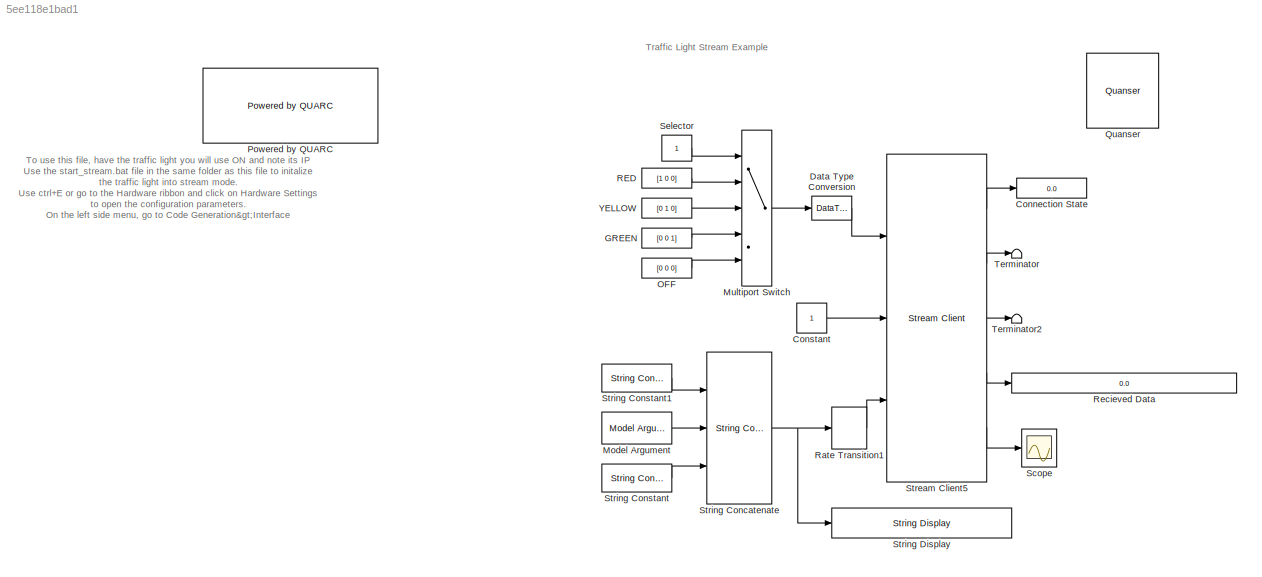
MODEL slx_5ee118e1bad1
KIND model
CONFIG AbsTol = auto
CONFIG EnableMultiTasking = on
CONFIG FixedStep = 0.002
CONFIG MaxStep = auto
CONFIG MinStep = auto
CONFIG RelTol = 1e-3
CONFIG SampleTimeConstraint = Unconstrained
CONFIG SolverName = FixedStepDiscrete
CONFIG StartTime = 0.0
CONFIG StopTime = inf
BLOCK [Display] Connection State
  NameLocation = right
  Ports = [1]
BLOCK [Constant] Constant
BLOCK [DataTypeConversion] Data Type Conversion
  OutDataTypeStr = uint8
  RndMeth = Floor
  SaturateOnIntegerOverflow = off
BLOCK [Constant] GREEN
  NameLocation = left
  Value = [0 0 1]
BLOCK [Reference] Model Argument  REF=quarc_library/Sources/Signals/Model Argument
  AttributesFormatString = (-%<argument_name>)
  Ports = [0, 1]
  SourceBlock = quarc_library/Sources/Signals/Model Argument
  SourceProductName = QUARC Targets
  SourceType = Model Argument
BLOCK [MultiPortSwitch] Multiport Switch
  DiagnosticForDefault = None
  InputSameDT = off
  Inputs = 4
  Ports = [5, 1]
  SaturateOnIntegerOverflow = off
BLOCK [Constant] OFF
  NameLocation = left
  Value = [0 0 0]
BLOCK [Reference] Powered by QUARC  REF=quarc_library/Logos/Powered by QUARC
  Ports = []
  SourceBlock = quarc_library/Logos/Powered by QUARC
  SourceProductName = QUARC Targets
  SourceType = Powered by QUARC
BLOCK [Reference] Quanser  REF=quarc_library/Logos/Quanser
  Ports = []
  SourceBlock = quarc_library/Logos/Quanser
  SourceProductName = QUARC Targets
  SourceType = Powered by Quanser
BLOCK [Constant] RED
  NameLocation = left
  Value = [1 0 0]
BLOCK [RateTransition] Rate Transition1
BLOCK [Display] Recieved Data
  NameLocation = top
  Ports = [1]
BLOCK [Scope] Scope
  Floating = off
  NumInputPorts = 1
  Ports = [1]
  ScopeSpecificationString = Simulink.scopes.TimeScopeBlockCfg('CurrentConfiguration', extmgr.ConfigurationSet(extmgr.Configuration('Core','General UI',true),extmgr.Configuration('Core','Source UI',true),extmgr.Configuration('Sources','WiredSimulink',true),extmgr.Configuration('Visuals','Time Domain',true),extmgr.Configuration('Tools','Plot Navigation',true),extmgr.Configuration('Tools','Measurements',true)),'Version','2024a'...<+1ch>
BLOCK [Constant] Selector
  NameLocation = left
BLOCK [Reference] Stream Client5  REF=quarc_library/Communications/Basic/Stream Client
  Ports = [3, 5]
  SourceBlock = quarc_library/Communications/Basic/Stream Client
  SourceProductName = QUARC Targets
  SourceType = Stream Client
BLOCK [Reference] String Concatenate  REF=quarc_library/Strings/String Concatenate
  Ports = [3, 1]
  SourceBlock = quarc_library/Strings/String Concatenate
  SourceProductName = QUARC Targets
  SourceType = String Concatenate
BLOCK [Reference] String Constant  REF=quarc_library/Strings/String Constant
  AttributesFormatString = ":18020"
  Ports = [0, 1]
  SourceBlock = quarc_library/Strings/String Constant
  SourceProductName = QUARC Targets
  SourceType = String Constant
BLOCK [Reference] String Constant1  REF=quarc_library/Strings/String Constant
  AttributesFormatString = "tcpip://"
  Ports = [0, 1]
  SourceBlock = quarc_library/Strings/String Constant
  SourceProductName = QUARC Targets
  SourceType = String Constant
BLOCK [Reference] String Display  REF=quarc_library/Strings/String Display
  Ports = [1]
  SourceBlock = quarc_library/Strings/String Display
  SourceProductName = QUARC Targets
  SourceType = String Display
BLOCK [Terminator] Terminator
BLOCK [Terminator] Terminator2
BLOCK [Constant] YELLOW
  NameLocation = left
  Value = [0 1 0]
ANNOTATION (root): Traffic Light Stream Example
ANNOTATION (root): To use this file, have the traffic light you will use ON and note its IP Use the start_stream.bat file in the same folder as this file to initalize the traffic light into stream mode. Use ctrl+E or go to the Hardware ribbon and click on Hardware Settings to open the configuration parameters. On the left side menu, go to Code Generation>Interface Under External mode configuration, set the MEX-file ...<+622ch>
LINE Constant:1 -> Stream Client5:2
LINE Data Type Conversion:1 -> Stream Client5:1
LINE GREEN:1 -> Multiport Switch:4
LINE Model Argument:1 -> String Concatenate:2
LINE Multiport Switch:1 -> Data Type Conversion:1
LINE OFF:1 -> Multiport Switch:5
LINE RED:1 -> Multiport Switch:2
LINE Rate Transition1:1 -> Stream Client5:3
LINE Selector:1 -> Multiport Switch:1
LINE Stream Client5:1 -> Connection State:1
LINE Stream Client5:2 -> Terminator:1
LINE Stream Client5:3 -> Terminator2:1
LINE Stream Client5:4 -> Recieved Data:1
LINE Stream Client5:5 -> Scope:1
NET String Concatenate:1 -> Rate Transition1:1, String Display:1
LINE String Constant1:1 -> String Concatenate:1
LINE String Constant:1 -> String Concatenate:3
LINE YELLOW:1 -> Multiport Switch:3
note: NET lines group one-source signal fan-out (src -> all destinations, sorted); 1:1 wires keep LINE
